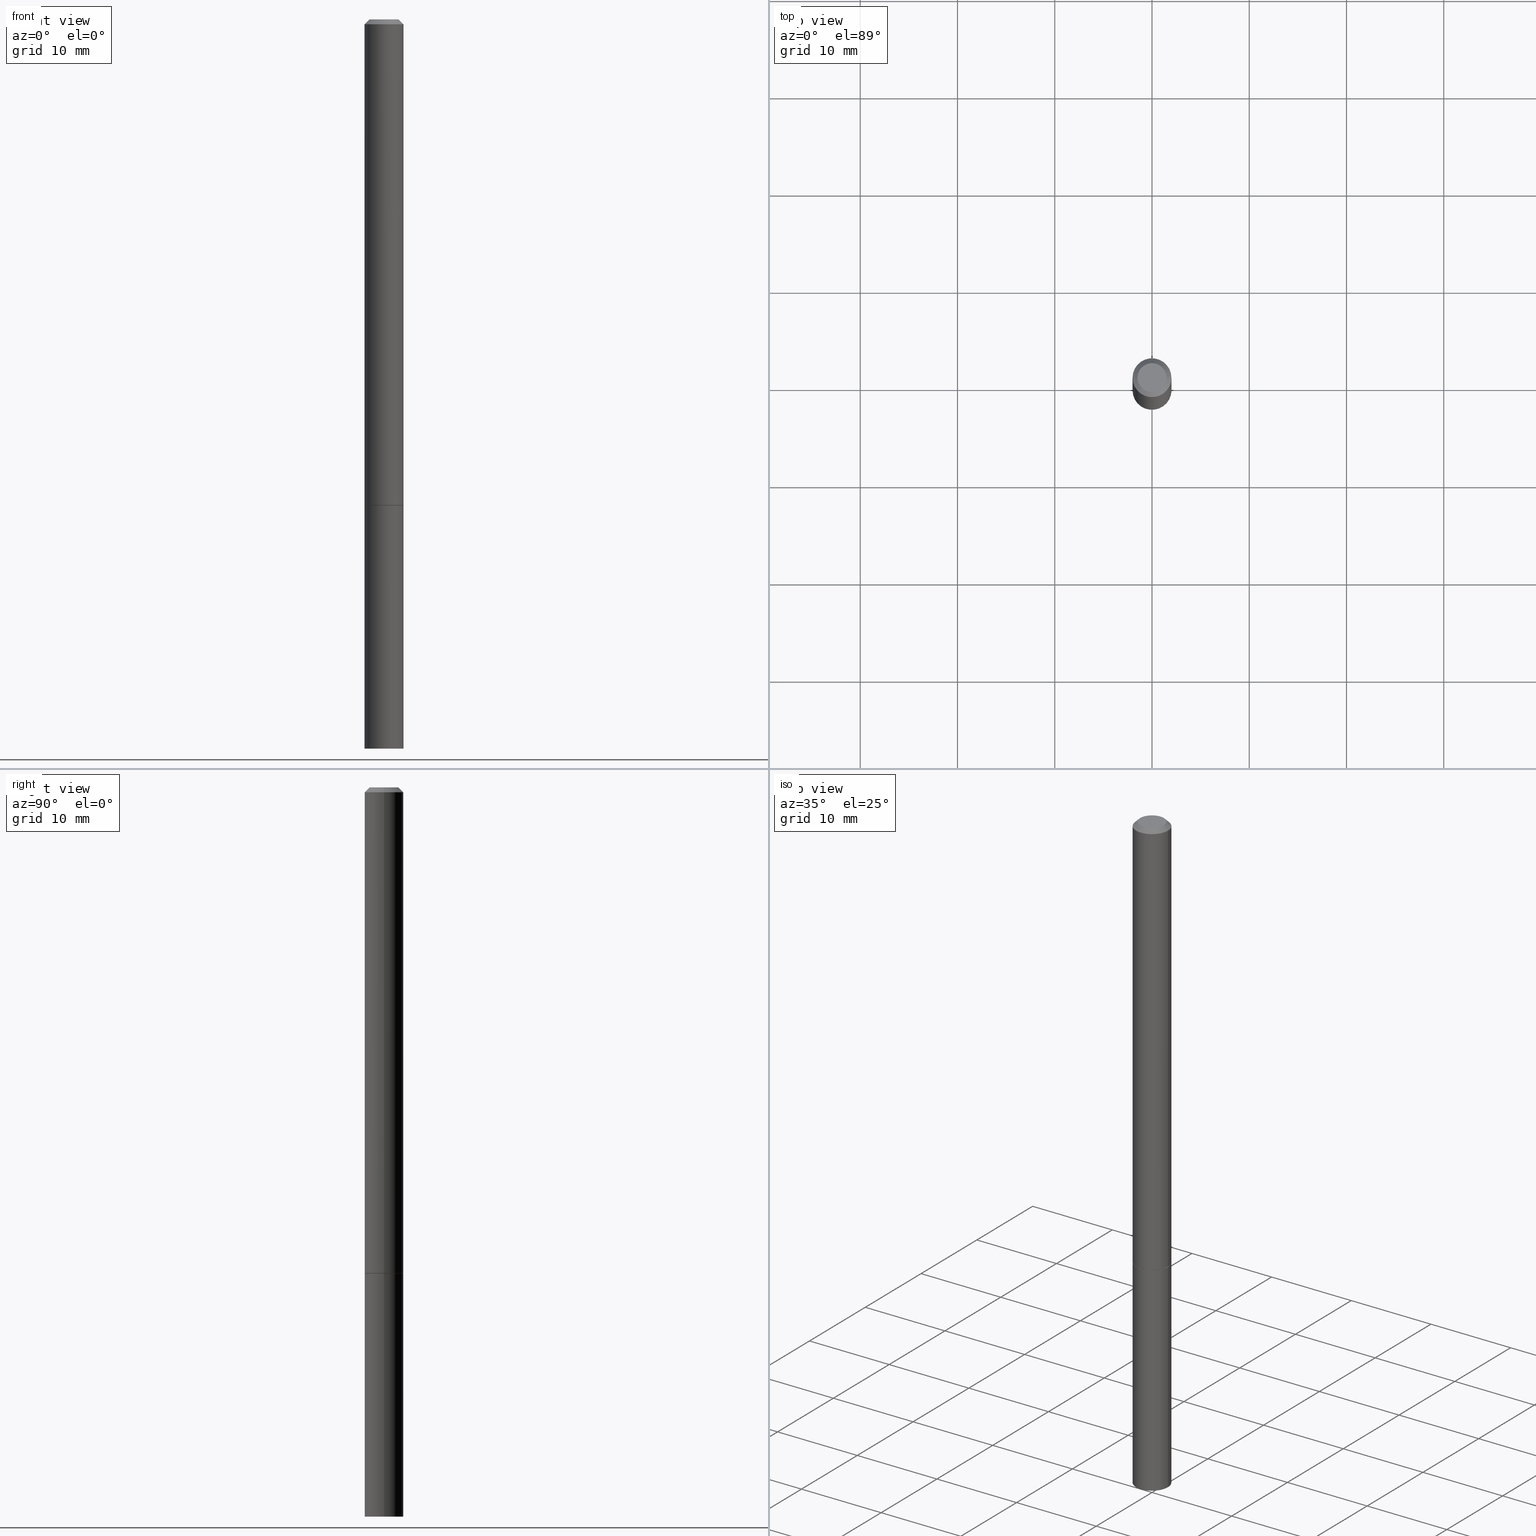
[diagram: canonical four-view strip — front | top / right | iso, engineering-drawing reading convention]
A machine part, canonical four-view strip (front | top / right | iso — engineering-drawing reading convention). The complete STEP part file that produces these views, byte-faithful:
ISO-10303-21;
HEADER;
FILE_DESCRIPTION (( 'STEP AP203' ),
    '1' );
FILE_NAME ('43503.STEP',
    '2024-02-28T04:47:04',
    ( '' ),
    ( '' ),
    'SwSTEP 2.0',
    'SolidWorks 2023',
    '' );
FILE_SCHEMA (( 'CONFIG_CONTROL_DESIGN' ));
ENDSEC;

DATA;
#1 = APPROVAL ( #280, 'UNSPECIFIED' ) ;
#2 = FACE_OUTER_BOUND ( 'NONE', #100, .T. ) ;
#3 = AXIS2_PLACEMENT_3D ( 'NONE', #85, #315, #233 ) ;
#4 = DIRECTION ( 'NONE',  ( 1.000000000000000000, -6.982962677686265922E-15, 4.876176775795935793E-29 ) ) ;
#5 = DIRECTION ( 'NONE',  ( -2.445468806185136597E-29, 3.491481338843145583E-15, 1.000000000000000000 ) ) ;
#6 = CARTESIAN_POINT ( 'NONE',  ( 4.811459876169255671E-29, -6.869489534173887122E-15, -1.967499999999999805 ) ) ;
#7 = CIRCLE ( 'NONE', #40, 0.07875000000000000056 ) ;
#8 = ADVANCED_FACE ( 'NONE', ( #366 ), #82, .F. ) ;
#9 = FACE_OUTER_BOUND ( 'NONE', #67, .T. ) ;
#10 = CC_DESIGN_PERSON_AND_ORGANIZATION_ASSIGNMENT ( #295, #41, ( #83 ) ) ;
#11 = EDGE_LOOP ( 'NONE', ( #246, #304, #268, #325 ) ) ;
#12 = EDGE_CURVE ( 'NONE', #188, #159, #361, .T. ) ;
#13 = CONICAL_SURFACE ( 'NONE', #255, 0.07874999999999973688, 0.7853981633974472798 ) ;
#14 = VERTEX_POINT ( 'NONE', #362 ) ;
#15 = PERSON_AND_ORGANIZATION_ROLE ( 'design_owner' ) ;
#16 = EDGE_LOOP ( 'NONE', ( #243, #154, #81, #71 ) ) ;
#17 = ORIENTED_EDGE ( 'NONE', *, *, #106, .T. ) ;
#18 = MANIFOLD_SOLID_BREP ( 'Body-Move/Copy2[1]', #316 ) ;
#19 = EDGE_CURVE ( 'NONE', #14, #48, #20, .T. ) ;
#20 = LINE ( 'NONE', #168, #198 ) ;
#21 = AXIS2_PLACEMENT_3D ( 'NONE', #150, #236, #347 ) ;
#22 = CC_DESIGN_APPROVAL ( #1, ( #112 ) ) ;
#23 = DIMENSIONAL_EXPONENTS ( 1.000000000000000000, 0.000000000000000000, 0.000000000000000000, 0.000000000000000000, 0.000000000000000000, 0.000000000000000000, 0.000000000000000000 ) ;
#24 = MANIFOLD_SOLID_BREP ( 'Body-Move/Copy2[2]', #305 ) ;
#25 = APPROVAL_ROLE ( '' ) ;
#26 = DIRECTION ( 'NONE',  ( -2.445468806185136597E-29, 3.491481338843145583E-15, 1.000000000000000000 ) ) ;
#27 = CARTESIAN_POINT ( 'NONE',  ( 0.07874999999999987566, -5.499083108677926554E-16, 3.839989210939293411E-30 ) ) ;
#28 = DIRECTION ( 'NONE',  ( 1.000000000000000000, -6.982962677686261977E-15, 0.000000000000000000 ) ) ;
#29 = CIRCLE ( 'NONE', #192, 0.07875000000000000056 ) ;
#30 = VECTOR ( 'NONE', #313, 39.37007874015748143 ) ;
#31 = CARTESIAN_POINT ( 'NONE',  ( 5.499083108678415648E-16, 0.07874999999999311717, -1.968500000000000139 ) ) ;
#32 = APPROVAL ( #275, 'UNSPECIFIED' ) ;
#33 = CARTESIAN_POINT ( 'NONE',  ( 4.890937612370276662E-31, -6.982962677686296539E-17, -0.02000000000000001776 ) ) ;
#34 = LINE ( 'NONE', #318, #101 ) ;
#35 = ADVANCED_FACE ( 'NONE', ( #135 ), #309, .T. ) ;
#36 = AXIS2_PLACEMENT_3D ( 'NONE', #114, #59, #179 ) ;
#37 = DIRECTION ( 'NONE',  ( 1.000000000000000000, -6.982962677686261977E-15, 0.000000000000000000 ) ) ;
#38 = CARTESIAN_POINT ( 'NONE',  ( 4.813905344975440714E-29, -6.872981015512730918E-15, -1.968499999999999694 ) ) ;
#39 = FACE_OUTER_BOUND ( 'NONE', #350, .T. ) ;
#40 = AXIS2_PLACEMENT_3D ( 'NONE', #6, #145, #62 ) ;
#41 = PERSON_AND_ORGANIZATION_ROLE ( 'creator' ) ;
#42 = CALENDAR_DATE ( 2024, 27, 2 ) ;
#43 = ORIENTED_EDGE ( 'NONE', *, *, #232, .T. ) ;
#44 = EDGE_LOOP ( 'NONE', ( #302, #190 ) ) ;
#45 = AXIS2_PLACEMENT_3D ( 'NONE', #256, #251, #28 ) ;
#46 =( CONVERSION_BASED_UNIT ( 'INCH', #129 ) LENGTH_UNIT ( ) NAMED_UNIT ( #23 ) );
#47 = CONICAL_SURFACE ( 'NONE', #204, 0.07774999999999999967, 0.7853981633974141952 ) ;
#48 = VERTEX_POINT ( 'NONE', #339 ) ;
#49 = VERTEX_POINT ( 'NONE', #359 ) ;
#50 = DIRECTION ( 'NONE',  ( 2.438088387897960049E-29, -3.491481338843145188E-15, -1.000000000000000000 ) ) ;
#51 = ORIENTED_EDGE ( 'NONE', *, *, #19, .T. ) ;
#52 = CARTESIAN_POINT ( 'NONE',  ( 0.000000000000000000, 0.000000000000000000, 0.000000000000000000 ) ) ;
#53 = DIRECTION ( 'NONE',  ( -0.7071067811865232589, 7.493145998870265808E-15, 0.7071067811865715536 ) ) ;
#54 = CARTESIAN_POINT ( 'NONE',  ( -0.07874999999999987566, 5.595524044110780128E-16, -3.873661383575732186E-30 ) ) ;
#55 = EDGE_CURVE ( 'NONE', #221, #188, #201, .T. ) ;
#56 = DIRECTION ( 'NONE',  ( -2.445468806185136597E-29, 3.491481338843145583E-15, 1.000000000000000000 ) ) ;
#57 = ADVANCED_FACE ( 'NONE', ( #174 ), #278, .T. ) ;
#58 = DIRECTION ( 'NONE',  ( -2.445468806185136597E-29, 3.491481338843145583E-15, 1.000000000000000000 ) ) ;
#59 = DIRECTION ( 'NONE',  ( -2.445468806185136597E-29, 3.491481338843145583E-15, 1.000000000000000000 ) ) ;
#60 = AXIS2_PLACEMENT_3D ( 'NONE', #66, #131, #247 ) ;
#61 = DIRECTION ( 'NONE',  ( -2.438088387897960049E-29, 3.491481338843145188E-15, 1.000000000000000000 ) ) ;
#62 = DIRECTION ( 'NONE',  ( 1.000000000000000000, -6.982962677686261977E-15, 0.000000000000000000 ) ) ;
#63 = PERSON ( 'UNSPECIFIED', 'UNSPECIFIED', 'UNSPECIFIED', ('UNSPECIFIED'), ('UNSPECIFIED'), ('UNSPECIFIED') ) ;
#64 = DIRECTION ( 'NONE',  ( -2.445468806185136597E-29, 3.491481338843145583E-15, 1.000000000000000000 ) ) ;
#65 = LOCAL_TIME ( 23, 47, 4.000000000000000000, #73 ) ;
#66 = CARTESIAN_POINT ( 'NONE',  ( 0.000000000000000000, 0.000000000000000000, 0.000000000000000000 ) ) ;
#67 = EDGE_LOOP ( 'NONE', ( #69, #96, #248, #195 ) ) ;
#68 = APPROVAL_ROLE ( '' ) ;
#69 = ORIENTED_EDGE ( 'NONE', *, *, #12, .F. ) ;
#70 = CALENDAR_DATE ( 2024, 27, 2 ) ;
#71 = ORIENTED_EDGE ( 'NONE', *, *, #360, .T. ) ;
#72 = AXIS2_PLACEMENT_3D ( 'NONE', #288, #149, #285 ) ;
#73 = COORDINATED_UNIVERSAL_TIME_OFFSET ( 5, 0, .BEHIND. ) ;
#74 = DESIGN_CONTEXT ( 'detailed design', #144, 'design' ) ;
#75 = DATE_AND_TIME ( #86, #166 ) ;
#76 = EDGE_LOOP ( 'NONE', ( #185, #257 ) ) ;
#77 = DIRECTION ( 'NONE',  ( 1.000000000000000000, -6.982962677686261977E-15, 0.000000000000000000 ) ) ;
#78 = DIRECTION ( 'NONE',  ( -2.445468806185136877E-29, 3.491481338843145188E-15, 1.000000000000000000 ) ) ;
#79 = CONICAL_SURFACE ( 'NONE', #21, 0.07774999999999999967, 0.7853981633974141952 ) ;
#80 = LINE ( 'NONE', #140, #172 ) ;
#81 = ORIENTED_EDGE ( 'NONE', *, *, #116, .T. ) ;
#82 = PLANE ( 'NONE',  #254 ) ;
#83 = PRODUCT_DEFINITION_FORMATION_WITH_SPECIFIED_SOURCE ( 'ANY', '', #157, .NOT_KNOWN. ) ;
#84 = APPLICATION_CONTEXT ( 'configuration controlled 3d designs of mechanical parts and assemblies' ) ;
#85 = CARTESIAN_POINT ( 'NONE',  ( 7.220980290903470182E-29, -1.030964609733603853E-14, -2.952799999999999869 ) ) ;
#86 = CALENDAR_DATE ( 2024, 27, 2 ) ;
#87 = CARTESIAN_POINT ( 'NONE',  ( 7.220980290903470182E-29, -1.030964609733603853E-14, -2.952799999999999869 ) ) ;
#88 = DIRECTION ( 'NONE',  ( 1.000000000000000000, -6.982962677686261977E-15, 0.000000000000000000 ) ) ;
#89 = AXIS2_PLACEMENT_3D ( 'NONE', #200, #338, #136 ) ;
#90 = CARTESIAN_POINT ( 'NONE',  ( 4.890937612370276662E-31, -6.982962677686296539E-17, -0.02000000000000001776 ) ) ;
#91 = FACE_OUTER_BOUND ( 'NONE', #332, .T. ) ;
#92 = CC_DESIGN_PERSON_AND_ORGANIZATION_ASSIGNMENT ( #189, #239, ( #357 ) ) ;
#93 = EDGE_CURVE ( 'NONE', #221, #323, #220, .T. ) ;
#94 = CIRCLE ( 'NONE', #146, 0.07875000000000000056 ) ;
#95 = APPLICATION_PROTOCOL_DEFINITION ( 'international standard', 'config_control_design', 1994, #144 ) ;
#96 = ORIENTED_EDGE ( 'NONE', *, *, #292, .T. ) ;
#97 = DATE_AND_TIME ( #126, #193 ) ;
#98 = FACE_OUTER_BOUND ( 'NONE', #219, .T. ) ;
#99 = ADVANCED_FACE ( 'NONE', ( #223 ), #203, .T. ) ;
#100 = EDGE_LOOP ( 'NONE', ( #241, #216, #164, #170 ) ) ;
#101 = VECTOR ( 'NONE', #148, 39.37007874015748854 ) ;
#102 = DIRECTION ( 'NONE',  ( -0.7071067811865467956, 2.468850131082249172E-15, -0.7071067811865482389 ) ) ;
#103 = EDGE_CURVE ( 'NONE', #274, #127, #224, .T. ) ;
#104 = DATE_AND_TIME ( #277, #311 ) ;
#105 = DIRECTION ( 'NONE',  ( 1.000000000000000000, -6.982962677686265922E-15, 4.876176775795935232E-29 ) ) ;
#106 = EDGE_CURVE ( 'NONE', #49, #355, #336, .T. ) ;
#107 = CARTESIAN_POINT ( 'NONE',  ( 0.07874999999999973688, -6.100938441013694129E-16, -0.02000000000000001776 ) ) ;
#108 = AXIS2_PLACEMENT_3D ( 'NONE', #319, #61, #4 ) ;
#109 = DIRECTION ( 'NONE',  ( -2.445468806185136877E-29, 3.491481338843145188E-15, 1.000000000000000000 ) ) ;
#110 = DIRECTION ( 'NONE',  ( -2.445468806185136877E-29, 3.491481338843145188E-15, 1.000000000000000000 ) ) ;
#111 = CARTESIAN_POINT ( 'NONE',  ( 4.813905344975440714E-29, -6.872981015512730918E-15, -1.968499999999999694 ) ) ;
#112 = SECURITY_CLASSIFICATION ( '', '', #349 ) ;
#113 = PERSON_AND_ORGANIZATION_ROLE ( 'classification_officer' ) ;
#114 = CARTESIAN_POINT ( 'NONE',  ( 0.000000000000000000, 0.000000000000000000, 0.000000000000000000 ) ) ;
#115 = CC_DESIGN_PERSON_AND_ORGANIZATION_ASSIGNMENT ( #273, #15, ( #157 ) ) ;
#116 = EDGE_CURVE ( 'NONE', #294, #159, #80, .T. ) ;
#117 = CARTESIAN_POINT ( 'NONE',  ( -0.07774999999999999967, -6.315235584111030723E-15, -1.968499999999999694 ) ) ;
#118 = DIRECTION ( 'NONE',  ( 1.000000000000000000, -6.982962677686261977E-15, 0.000000000000000000 ) ) ;
#119 = CIRCLE ( 'NONE', #363, 0.07874999999999973688 ) ;
#120 = CARTESIAN_POINT ( 'NONE',  ( -0.07875000000000000056, -2.910107176064290492E-15, -1.967499999999999805 ) ) ;
#121 = APPROVAL_ROLE ( '' ) ;
#122 = ADVANCED_FACE ( 'NONE', ( #335 ), #364, .F. ) ;
#123 = ORIENTED_EDGE ( 'NONE', *, *, #93, .F. ) ;
#124 = CARTESIAN_POINT ( 'NONE',  ( 0.07875000000000000056, -7.422889326380523475E-15, -1.968499999999999694 ) ) ;
#125 = EDGE_LOOP ( 'NONE', ( #214, #310, #270, #352 ) ) ;
#126 = CALENDAR_DATE ( 2024, 27, 2 ) ;
#127 = VERTEX_POINT ( 'NONE', #308 ) ;
#128 = EDGE_CURVE ( 'NONE', #162, #188, #29, .T. ) ;
#129 = LENGTH_MEASURE_WITH_UNIT ( LENGTH_MEASURE( 0.02539999999999999897 ), #213 );
#130 = ORIENTED_EDGE ( 'NONE', *, *, #252, .F. ) ;
#131 = DIRECTION ( 'NONE',  ( -2.445468806185136597E-29, 3.491481338843145583E-15, 1.000000000000000000 ) ) ;
#132 = ORIENTED_EDGE ( 'NONE', *, *, #19, .F. ) ;
#133 = CIRCLE ( 'NONE', #3, 0.07875000000000000056 ) ;
#134 = CC_DESIGN_DATE_AND_TIME_ASSIGNMENT ( #75, #260, ( #112 ) ) ;
#135 = FACE_OUTER_BOUND ( 'NONE', #76, .T. ) ;
#136 = DIRECTION ( 'NONE',  ( 1.000000000000000000, -6.982962677686266711E-15, 4.876176775795935793E-29 ) ) ;
#137 = EDGE_LOOP ( 'NONE', ( #132, #218, #17, #156 ) ) ;
#138 = VECTOR ( 'NONE', #78, 39.37007874015748143 ) ;
#139 = VECTOR ( 'NONE', #110, 39.37007874015748143 ) ;
#140 = CARTESIAN_POINT ( 'NONE',  ( -0.07874999999999973688, 4.800786840909286670E-16, -0.02000000000000001776 ) ) ;
#141 = AXIS2_PLACEMENT_3D ( 'NONE', #217, #269, #293 ) ;
#142 = DIRECTION ( 'NONE',  ( 2.438088387897960049E-29, -3.491481338843145188E-15, -1.000000000000000000 ) ) ;
#143 = CARTESIAN_POINT ( 'NONE',  ( 0.05874999999999976769, -5.065740507352226296E-16, 3.205406768517973136E-30 ) ) ;
#144 = APPLICATION_CONTEXT ( 'configuration controlled 3d designs of mechanical parts and assemblies' ) ;
#145 = DIRECTION ( 'NONE',  ( -2.445468806185136597E-29, 3.491481338843145583E-15, 1.000000000000000000 ) ) ;
#146 = AXIS2_PLACEMENT_3D ( 'NONE', #87, #261, #344 ) ;
#147 = COORDINATED_UNIVERSAL_TIME_OFFSET ( 5, 0, .BEHIND. ) ;
#148 = DIRECTION ( 'NONE',  ( 0.7071067811865232589, -2.468850131082003836E-15, 0.7071067811865715536 ) ) ;
#149 = DIRECTION ( 'NONE',  ( -2.445468806185136597E-29, 3.491481338843145583E-15, 1.000000000000000000 ) ) ;
#150 = CARTESIAN_POINT ( 'NONE',  ( 4.813905344975440714E-29, -6.872981015512730918E-15, -1.968499999999999694 ) ) ;
#151 = AXIS2_PLACEMENT_3D ( 'NONE', #283, #142, #253 ) ;
#152 = EDGE_CURVE ( 'NONE', #162, #127, #197, .T. ) ;
#153 = PERSON_AND_ORGANIZATION ( #63, #230 ) ;
#154 = ORIENTED_EDGE ( 'NONE', *, *, #186, .F. ) ;
#155 = DATE_AND_TIME ( #70, #65 ) ;
#156 = ORIENTED_EDGE ( 'NONE', *, *, #167, .F. ) ;
#157 = PRODUCT ( '43503', '43503', '', ( #329 ) ) ;
#158 = PERSON_AND_ORGANIZATION ( #63, #230 ) ;
#159 = VERTEX_POINT ( 'NONE', #208 ) ;
#160 = VECTOR ( 'NONE', #53, 39.37007874015748854 ) ;
#161 = CIRCLE ( 'NONE', #237, 0.07875000000000000056 ) ;
#162 = VERTEX_POINT ( 'NONE', #312 ) ;
#163 = COORDINATED_UNIVERSAL_TIME_OFFSET ( 5, 0, .BEHIND. ) ;
#164 = ORIENTED_EDGE ( 'NONE', *, *, #128, .F. ) ;
#165 = DIRECTION ( 'NONE',  ( -1.000000000000000000, 6.982962677686265922E-15, -4.876176775795935793E-29 ) ) ;
#166 = LOCAL_TIME ( 23, 47, 4.000000000000000000, #147 ) ;
#167 = EDGE_CURVE ( 'NONE', #48, #355, #337, .T. ) ;
#168 = CARTESIAN_POINT ( 'NONE',  ( -0.07875000000000000056, 5.595524044110789003E-16, -3.873661383575737792E-30 ) ) ;
#169 = DIRECTION ( 'NONE',  ( 0.7071067811865467956, -7.319954787623254468E-15, -0.7071067811865482389 ) ) ;
#170 = ORIENTED_EDGE ( 'NONE', *, *, #202, .F. ) ;
#171 = EDGE_CURVE ( 'NONE', #14, #49, #94, .T. ) ;
#172 = VECTOR ( 'NONE', #102, 39.37007874015748143 ) ;
#173 = APPROVAL_PERSON_ORGANIZATION ( #158, #32, #121 ) ;
#174 = FACE_OUTER_BOUND ( 'NONE', #11, .T. ) ;
#175 = CARTESIAN_POINT ( 'NONE',  ( 4.813905344975440714E-29, -6.872981015512730918E-15, -1.968499999999999694 ) ) ;
#176 = DIRECTION ( 'NONE',  ( 2.445468806185136597E-29, -3.491481338843145583E-15, -1.000000000000000000 ) ) ;
#177 = CYLINDRICAL_SURFACE ( 'NONE', #72, 0.07874999999999987566 ) ;
#178 = EDGE_CURVE ( 'NONE', #323, #221, #358, .T. ) ;
#179 = DIRECTION ( 'NONE',  ( 1.000000000000000000, -6.982962677686266711E-15, 4.876176775795935793E-29 ) ) ;
#180 = DIRECTION ( 'NONE',  ( -2.445468806185136597E-29, 3.491481338843145583E-15, 1.000000000000000000 ) ) ;
#181 = EDGE_CURVE ( 'NONE', #49, #14, #133, .T. ) ;
#182 = LOCAL_TIME ( 23, 47, 4.000000000000000000, #194 ) ;
#183 = APPROVAL_PERSON_ORGANIZATION ( #229, #1, #25 ) ;
#184 = APPROVAL_DATE_TIME ( #301, #303 ) ;
#185 = ORIENTED_EDGE ( 'NONE', *, *, #181, .F. ) ;
#186 = EDGE_CURVE ( 'NONE', #294, #274, #306, .T. ) ;
#187 = PERSON_AND_ORGANIZATION_ROLE ( 'design_supplier' ) ;
#188 = VERTEX_POINT ( 'NONE', #120 ) ;
#189 = PERSON_AND_ORGANIZATION ( #63, #230 ) ;
#190 = ORIENTED_EDGE ( 'NONE', *, *, #167, .T. ) ;
#191 = AXIS2_PLACEMENT_3D ( 'NONE', #226, #284, #228 ) ;
#192 = AXIS2_PLACEMENT_3D ( 'NONE', #282, #340, #77 ) ;
#193 = LOCAL_TIME ( 23, 47, 4.000000000000000000, #163 ) ;
#194 = COORDINATED_UNIVERSAL_TIME_OFFSET ( 5, 0, .BEHIND. ) ;
#195 = ORIENTED_EDGE ( 'NONE', *, *, #360, .F. ) ;
#196 = ORIENTED_EDGE ( 'NONE', *, *, #181, .T. ) ;
#197 = LINE ( 'NONE', #27, #30 ) ;
#198 = VECTOR ( 'NONE', #109, 39.37007874015748143 ) ;
#199 = AXIS2_PLACEMENT_3D ( 'NONE', #210, #5, #211 ) ;
#200 = CARTESIAN_POINT ( 'NONE',  ( 0.000000000000000000, 0.000000000000000000, 0.000000000000000000 ) ) ;
#201 = LINE ( 'NONE', #281, #160 ) ;
#202 = EDGE_CURVE ( 'NONE', #323, #162, #34, .T. ) ;
#203 = CYLINDRICAL_SURFACE ( 'NONE', #345, 0.07875000000000000056 ) ;
#204 = AXIS2_PLACEMENT_3D ( 'NONE', #111, #231, #342 ) ;
#205 = ORIENTED_EDGE ( 'NONE', *, *, #178, .F. ) ;
#206 = CC_DESIGN_PERSON_AND_ORGANIZATION_ASSIGNMENT ( #334, #113, ( #112 ) ) ;
#207 = APPROVAL_DATE_TIME ( #104, #1 ) ;
#208 = CARTESIAN_POINT ( 'NONE',  ( -0.07874999999999973688, 4.800786840909286670E-16, -0.02000000000000001776 ) ) ;
#209 = SHAPE_DEFINITION_REPRESENTATION ( #297, #365 ) ;
#210 = CARTESIAN_POINT ( 'NONE',  ( 0.000000000000000000, 0.000000000000000000, 0.000000000000000000 ) ) ;
#211 = DIRECTION ( 'NONE',  ( 1.000000000000000000, -6.982962677686266711E-15, 4.876176775795935793E-29 ) ) ;
#212 = CARTESIAN_POINT ( 'NONE',  ( 4.813905344975440714E-29, -6.872981015512730918E-15, -1.968499999999999694 ) ) ;
#213 =( LENGTH_UNIT ( ) NAMED_UNIT ( * ) SI_UNIT ( $, .METRE. ) );
#214 = ORIENTED_EDGE ( 'NONE', *, *, #232, .F. ) ;
#215 =( NAMED_UNIT ( * ) PLANE_ANGLE_UNIT ( ) SI_UNIT ( $, .RADIAN. ) );
#216 = ORIENTED_EDGE ( 'NONE', *, *, #55, .T. ) ;
#217 = CARTESIAN_POINT ( 'NONE',  ( 0.000000000000000000, 0.000000000000000000, 0.000000000000000000 ) ) ;
#218 = ORIENTED_EDGE ( 'NONE', *, *, #171, .T. ) ;
#219 = EDGE_LOOP ( 'NONE', ( #196, #51, #130, #356 ) ) ;
#220 = CIRCLE ( 'NONE', #45, 0.07774999999999999967 ) ;
#221 = VERTEX_POINT ( 'NONE', #117 ) ;
#222 = ADVANCED_FACE ( 'NONE', ( #39 ), #343, .F. ) ;
#223 = FACE_OUTER_BOUND ( 'NONE', #137, .T. ) ;
#224 = LINE ( 'NONE', #107, #330 ) ;
#225 = CIRCLE ( 'NONE', #272, 0.07874999999999973688 ) ;
#226 = CARTESIAN_POINT ( 'NONE',  ( 4.102490573140664535E-16, 0.05874999999999976769, -2.051245286570339909E-16 ) ) ;
#227 = ORIENTED_EDGE ( 'NONE', *, *, #202, .T. ) ;
#228 = DIRECTION ( 'NONE',  ( -1.000000000000000000, 6.982962677686265922E-15, -4.876176775795935793E-29 ) ) ;
#229 = PERSON_AND_ORGANIZATION ( #63, #230 ) ;
#230 = ORGANIZATION ( 'UNSPECIFIED', 'UNSPECIFIED', '' ) ;
#231 = DIRECTION ( 'NONE',  ( -2.445468806185136597E-29, 3.491481338843145583E-15, 1.000000000000000000 ) ) ;
#232 = EDGE_CURVE ( 'NONE', #274, #294, #317, .T. ) ;
#233 = DIRECTION ( 'NONE',  ( 1.000000000000000000, -6.982962677686261977E-15, 0.000000000000000000 ) ) ;
#234 = DIRECTION ( 'NONE',  ( -2.445468806185136597E-29, 3.491481338843145583E-15, 1.000000000000000000 ) ) ;
#235 = ADVANCED_FACE ( 'NONE', ( #9 ), #177, .T. ) ;
#236 = DIRECTION ( 'NONE',  ( -2.445468806185136597E-29, 3.491481338843145583E-15, 1.000000000000000000 ) ) ;
#237 = AXIS2_PLACEMENT_3D ( 'NONE', #38, #58, #118 ) ;
#238 = CARTESIAN_POINT ( 'NONE',  ( 4.890937612370276662E-31, -6.982962677686296539E-17, -0.02000000000000001776 ) ) ;
#239 = PERSON_AND_ORGANIZATION_ROLE ( 'creator' ) ;
#240 = PRODUCT_RELATED_PRODUCT_CATEGORY ( 'detail', '', ( #157 ) ) ;
#241 = ORIENTED_EDGE ( 'NONE', *, *, #178, .T. ) ;
#242 = APPLICATION_PROTOCOL_DEFINITION ( 'international standard', 'config_control_design', 1994, #84 ) ;
#243 = ORIENTED_EDGE ( 'NONE', *, *, #103, .F. ) ;
#244 =( GEOMETRIC_REPRESENTATION_CONTEXT ( 3 ) GLOBAL_UNCERTAINTY_ASSIGNED_CONTEXT ( ( #327 ) ) GLOBAL_UNIT_ASSIGNED_CONTEXT ( ( #46, #215, #322 ) ) REPRESENTATION_CONTEXT ( 'NONE', 'WORKASPACE' ) );
#245 = CYLINDRICAL_SURFACE ( 'NONE', #60, 0.07875000000000000056 ) ;
#246 = ORIENTED_EDGE ( 'NONE', *, *, #128, .T. ) ;
#247 = DIRECTION ( 'NONE',  ( 1.000000000000000000, -6.982962677686265922E-15, 4.876176775795935232E-29 ) ) ;
#248 = ORIENTED_EDGE ( 'NONE', *, *, #152, .T. ) ;
#249 = ORIENTED_EDGE ( 'NONE', *, *, #93, .T. ) ;
#250 = CARTESIAN_POINT ( 'NONE',  ( 0.07875000000000000056, -5.499083108677934443E-16, 3.839989210939299016E-30 ) ) ;
#251 = DIRECTION ( 'NONE',  ( -2.445468806185136597E-29, 3.491481338843145583E-15, 1.000000000000000000 ) ) ;
#252 = EDGE_CURVE ( 'NONE', #355, #48, #161, .T. ) ;
#253 = DIRECTION ( 'NONE',  ( -1.000000000000000000, 6.982962677686265922E-15, -4.876176775795935793E-29 ) ) ;
#254 = AXIS2_PLACEMENT_3D ( 'NONE', #31, #50, #165 ) ;
#255 = AXIS2_PLACEMENT_3D ( 'NONE', #33, #176, #286 ) ;
#256 = CARTESIAN_POINT ( 'NONE',  ( 4.813905344975440714E-29, -6.872981015512730918E-15, -1.968499999999999694 ) ) ;
#257 = ORIENTED_EDGE ( 'NONE', *, *, #171, .F. ) ;
#258 = DIRECTION ( 'NONE',  ( -1.000000000000000000, 6.982962677686266711E-15, 0.000000000000000000 ) ) ;
#259 = FACE_OUTER_BOUND ( 'NONE', #16, .T. ) ;
#260 = DATE_TIME_ROLE ( 'classification_date' ) ;
#261 = DIRECTION ( 'NONE',  ( -2.445468806185136597E-29, 3.491481338843145583E-15, 1.000000000000000000 ) ) ;
#262 = ADVANCED_FACE ( 'NONE', ( #263 ), #13, .T. ) ;
#263 = FACE_OUTER_BOUND ( 'NONE', #125, .T. ) ;
#264 = DIRECTION ( 'NONE',  ( 2.445468806185136597E-29, -3.491481338843145583E-15, -1.000000000000000000 ) ) ;
#265 = AXIS2_PLACEMENT_3D ( 'NONE', #90, #264, #258 ) ;
#266 = CC_DESIGN_PERSON_AND_ORGANIZATION_ASSIGNMENT ( #153, #187, ( #83 ) ) ;
#267 = CARTESIAN_POINT ( 'NONE',  ( 4.890937612370276662E-31, -6.982962677686296539E-17, -0.02000000000000001776 ) ) ;
#268 = ORIENTED_EDGE ( 'NONE', *, *, #299, .F. ) ;
#269 = DIRECTION ( 'NONE',  ( 0.000000000000000000, 0.000000000000000000, 1.000000000000000000 ) ) ;
#270 = ORIENTED_EDGE ( 'NONE', *, *, #299, .T. ) ;
#271 = ORIENTED_EDGE ( 'NONE', *, *, #186, .T. ) ;
#272 = AXIS2_PLACEMENT_3D ( 'NONE', #267, #64, #354 ) ;
#273 = PERSON_AND_ORGANIZATION ( #63, #230 ) ;
#274 = VERTEX_POINT ( 'NONE', #143 ) ;
#275 = APPROVAL_STATUS ( 'not_yet_approved' ) ;
#276 = ORIENTED_EDGE ( 'NONE', *, *, #292, .F. ) ;
#277 = CALENDAR_DATE ( 2024, 27, 2 ) ;
#278 = CYLINDRICAL_SURFACE ( 'NONE', #89, 0.07874999999999987566 ) ;
#279 = CC_DESIGN_APPROVAL ( #303, ( #83 ) ) ;
#280 = APPROVAL_STATUS ( 'not_yet_approved' ) ;
#281 = CARTESIAN_POINT ( 'NONE',  ( -0.07774999999999999967, -6.320534038459253125E-15, -1.968499999999999694 ) ) ;
#282 = CARTESIAN_POINT ( 'NONE',  ( 4.811459876169255671E-29, -6.869489534173887122E-15, -1.967499999999999805 ) ) ;
#283 = CARTESIAN_POINT ( 'NONE',  ( 5.499083108678655265E-16, 0.07874999999998968936, -2.952800000000000313 ) ) ;
#284 = DIRECTION ( 'NONE',  ( 2.438088387897960049E-29, -3.491481338843145188E-15, -1.000000000000000000 ) ) ;
#285 = DIRECTION ( 'NONE',  ( 1.000000000000000000, -6.982962677686266711E-15, 4.876176775795935793E-29 ) ) ;
#286 = DIRECTION ( 'NONE',  ( -1.000000000000000000, 6.982962677686266711E-15, 0.000000000000000000 ) ) ;
#287 = CARTESIAN_POINT ( 'NONE',  ( -0.05874999999999976769, 4.451638707024976095E-16, -2.990994270918715236E-30 ) ) ;
#288 = CARTESIAN_POINT ( 'NONE',  ( 0.000000000000000000, 0.000000000000000000, 0.000000000000000000 ) ) ;
#289 = CARTESIAN_POINT ( 'NONE',  ( 0.07774999999999999967, -7.415906363702837461E-15, -1.968499999999999694 ) ) ;
#290 = APPROVAL_STATUS ( 'not_yet_approved' ) ;
#291 = APPROVAL_PERSON_ORGANIZATION ( #324, #303, #68 ) ;
#292 = EDGE_CURVE ( 'NONE', #188, #162, #7, .T. ) ;
#293 = DIRECTION ( 'NONE',  ( 1.000000000000000000, 0.000000000000000000, 0.000000000000000000 ) ) ;
#294 = VERTEX_POINT ( 'NONE', #287 ) ;
#295 = PERSON_AND_ORGANIZATION ( #63, #230 ) ;
#296 = EDGE_LOOP ( 'NONE', ( #271, #43 ) ) ;
#297 = PRODUCT_DEFINITION_SHAPE ( 'NONE', 'NONE',  #357 ) ;
#298 = DATE_TIME_ROLE ( 'creation_date' ) ;
#299 = EDGE_CURVE ( 'NONE', #127, #159, #119, .T. ) ;
#300 = CC_DESIGN_SECURITY_CLASSIFICATION ( #112, ( #83 ) ) ;
#301 = DATE_AND_TIME ( #42, #182 ) ;
#302 = ORIENTED_EDGE ( 'NONE', *, *, #252, .T. ) ;
#303 = APPROVAL ( #290, 'UNSPECIFIED' ) ;
#304 = ORIENTED_EDGE ( 'NONE', *, *, #12, .T. ) ;
#305 = CLOSED_SHELL ( 'NONE', ( #326, #57, #262, #321, #235, #314, #222, #122 ) ) ;
#306 = CIRCLE ( 'NONE', #199, 0.05874999999999976769 ) ;
#307 = COORDINATED_UNIVERSAL_TIME_OFFSET ( 5, 0, .BEHIND. ) ;
#308 = CARTESIAN_POINT ( 'NONE',  ( 0.07874999999999973688, -6.100938441013694129E-16, -0.02000000000000001776 ) ) ;
#309 = PLANE ( 'NONE',  #151 ) ;
#310 = ORIENTED_EDGE ( 'NONE', *, *, #103, .T. ) ;
#311 = LOCAL_TIME ( 23, 47, 4.000000000000000000, #307 ) ;
#312 = CARTESIAN_POINT ( 'NONE',  ( 0.07875000000000000056, -7.419397845041680468E-15, -1.967499999999999805 ) ) ;
#313 = DIRECTION ( 'NONE',  ( -2.445468806185136877E-29, 3.491481338843145188E-15, 1.000000000000000000 ) ) ;
#314 = ADVANCED_FACE ( 'NONE', ( #91 ), #79, .T. ) ;
#315 = DIRECTION ( 'NONE',  ( -2.445468806185136597E-29, 3.491481338843145583E-15, 1.000000000000000000 ) ) ;
#316 = CLOSED_SHELL ( 'NONE', ( #353, #35, #8, #99 ) ) ;
#317 = CIRCLE ( 'NONE', #36, 0.05874999999999976769 ) ;
#318 = CARTESIAN_POINT ( 'NONE',  ( 0.07774999999999999967, -7.415906363702837461E-15, -1.968499999999999694 ) ) ;
#319 = CARTESIAN_POINT ( 'NONE',  ( 4.813905344975440714E-29, -6.872981015512730918E-15, -1.968499999999999694 ) ) ;
#320 = APPROVAL_DATE_TIME ( #155, #32 ) ;
#321 = ADVANCED_FACE ( 'NONE', ( #259 ), #331, .T. ) ;
#322 =( NAMED_UNIT ( * ) SI_UNIT ( $, .STERADIAN. ) SOLID_ANGLE_UNIT ( ) );
#323 = VERTEX_POINT ( 'NONE', #289 ) ;
#324 = PERSON_AND_ORGANIZATION ( #63, #230 ) ;
#325 = ORIENTED_EDGE ( 'NONE', *, *, #152, .F. ) ;
#326 = ADVANCED_FACE ( 'NONE', ( #2 ), #47, .T. ) ;
#327 = UNCERTAINTY_MEASURE_WITH_UNIT (LENGTH_MEASURE( 1.000000000000000082E-05 ), #46, 'distance_accuracy_value', 'NONE');
#328 = ORIENTED_EDGE ( 'NONE', *, *, #55, .F. ) ;
#329 = MECHANICAL_CONTEXT ( 'NONE', #84, 'mechanical' ) ;
#330 = VECTOR ( 'NONE', #169, 39.37007874015748143 ) ;
#331 = CONICAL_SURFACE ( 'NONE', #265, 0.07874999999999973688, 0.7853981633974472798 ) ;
#332 = EDGE_LOOP ( 'NONE', ( #328, #249, #227, #276 ) ) ;
#333 = CC_DESIGN_DATE_AND_TIME_ASSIGNMENT ( #97, #298, ( #357 ) ) ;
#334 = PERSON_AND_ORGANIZATION ( #63, #230 ) ;
#335 = FACE_OUTER_BOUND ( 'NONE', #296, .T. ) ;
#336 = LINE ( 'NONE', #250, #138 ) ;
#337 = CIRCLE ( 'NONE', #341, 0.07875000000000000056 ) ;
#338 = DIRECTION ( 'NONE',  ( -2.445468806185136597E-29, 3.491481338843145583E-15, 1.000000000000000000 ) ) ;
#339 = CARTESIAN_POINT ( 'NONE',  ( -0.07875000000000000056, -8.031761152013305527E-15, -1.968499999999999694 ) ) ;
#340 = DIRECTION ( 'NONE',  ( -2.445468806185136597E-29, 3.491481338843145583E-15, 1.000000000000000000 ) ) ;
#341 = AXIS2_PLACEMENT_3D ( 'NONE', #212, #56, #88 ) ;
#342 = DIRECTION ( 'NONE',  ( 1.000000000000000000, -6.982962677686261977E-15, 0.000000000000000000 ) ) ;
#343 = PLANE ( 'NONE',  #108 ) ;
#344 = DIRECTION ( 'NONE',  ( 1.000000000000000000, -6.982962677686261977E-15, 0.000000000000000000 ) ) ;
#345 = AXIS2_PLACEMENT_3D ( 'NONE', #52, #26, #105 ) ;
#346 = CC_DESIGN_APPROVAL ( #32, ( #357 ) ) ;
#347 = DIRECTION ( 'NONE',  ( 1.000000000000000000, -6.982962677686261977E-15, 0.000000000000000000 ) ) ;
#348 = DIRECTION ( 'NONE',  ( 1.000000000000000000, -6.982962677686266711E-15, 0.000000000000000000 ) ) ;
#349 = SECURITY_CLASSIFICATION_LEVEL ( 'unclassified' ) ;
#350 = EDGE_LOOP ( 'NONE', ( #205, #123 ) ) ;
#351 = AXIS2_PLACEMENT_3D ( 'NONE', #175, #234, #37 ) ;
#352 = ORIENTED_EDGE ( 'NONE', *, *, #116, .F. ) ;
#353 = ADVANCED_FACE ( 'NONE', ( #98 ), #245, .T. ) ;
#354 = DIRECTION ( 'NONE',  ( 1.000000000000000000, -6.982962677686266711E-15, 0.000000000000000000 ) ) ;
#355 = VERTEX_POINT ( 'NONE', #124 ) ;
#356 = ORIENTED_EDGE ( 'NONE', *, *, #106, .F. ) ;
#357 = PRODUCT_DEFINITION ( 'UNKNOWN', '', #83, #74 ) ;
#358 = CIRCLE ( 'NONE', #351, 0.07774999999999999967 ) ;
#359 = CARTESIAN_POINT ( 'NONE',  ( 0.07875000000000000056, -1.085955440820383187E-14, -2.952799999999999869 ) ) ;
#360 = EDGE_CURVE ( 'NONE', #159, #127, #225, .T. ) ;
#361 = LINE ( 'NONE', #54, #139 ) ;
#362 = CARTESIAN_POINT ( 'NONE',  ( -0.07875000000000000056, -8.031761152013305527E-15, -2.952799999999999869 ) ) ;
#363 = AXIS2_PLACEMENT_3D ( 'NONE', #238, #180, #348 ) ;
#364 = PLANE ( 'NONE',  #191 ) ;
#365 = ADVANCED_BREP_SHAPE_REPRESENTATION ( '43503', ( #18, #24, #141 ), #244 ) ;
#366 = FACE_OUTER_BOUND ( 'NONE', #44, .T. ) ;
ENDSEC;
END-ISO-10303-21;
